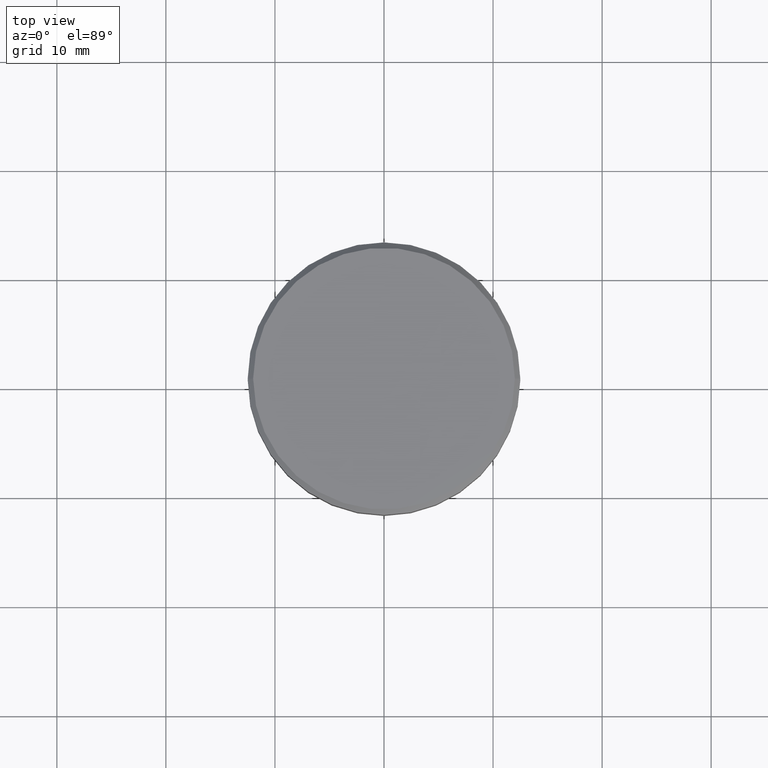
[diagram: clean part render]
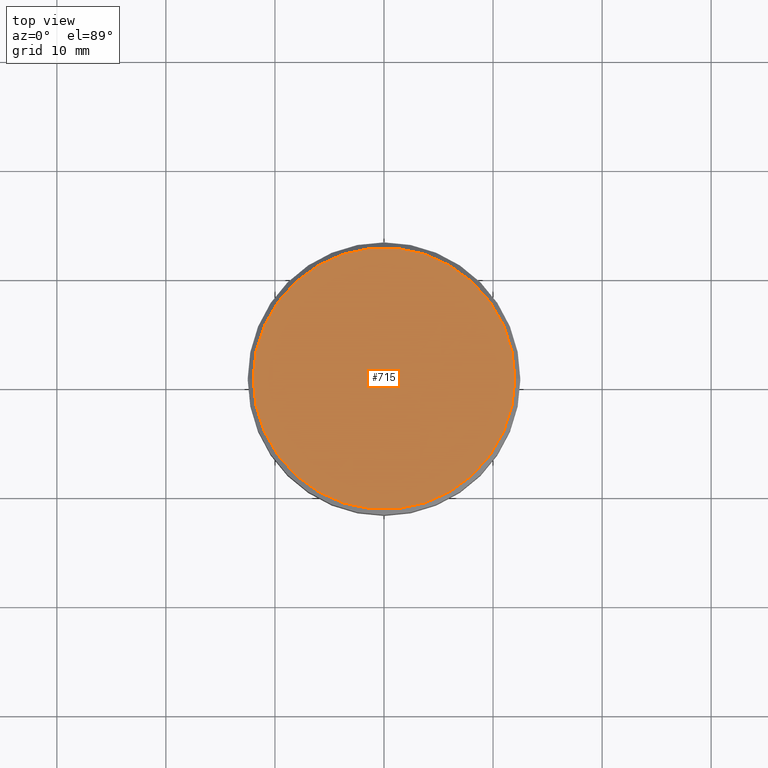
[diagram: same view with one face highlighted and labeled with its STEP entity id]
A machine part, top view. The second image highlights one B-rep face of the part: STEP entity #715.
In plain terms, the highlighted planar face has unit normal (0, -0, 1).
Its self-contained STEP definition (entity closure, byte-faithful):
#18 = EDGE_CURVE ( 'NONE', #985, #691, #549, .T. ) ;
#31 = EDGE_CURVE ( 'NONE', #691, #985, #1055, .T. ) ;
#51 = ORIENTED_EDGE ( 'NONE', *, *, #31, .T. ) ;
#54 = CARTESIAN_POINT ( 'NONE',  ( 0.000000000000000000, 0.000000000000000000, 0.000000000000000000 ) ) ;
#182 = ORIENTED_EDGE ( 'NONE', *, *, #18, .T. ) ;
#284 = AXIS2_PLACEMENT_3D ( 'NONE', #394, #874, #409 ) ;
#394 = CARTESIAN_POINT ( 'NONE',  ( 0.000000000000000000, 0.000000000000000000, 0.000000000000000000 ) ) ;
#409 = DIRECTION ( 'NONE',  ( 1.000000000000000000, 0.000000000000000000, 0.000000000000000000 ) ) ;
#488 = DIRECTION ( 'NONE',  ( 1.000000000000000000, 0.000000000000000000, 0.000000000000000000 ) ) ;
#513 = CARTESIAN_POINT ( 'NONE',  ( -12.00000000000001066, 0.000000000000000000, 0.000000000000000000 ) ) ;
#530 = CARTESIAN_POINT ( 'NONE',  ( 12.00000000000001066, 1.500192328955508326E-15, 0.000000000000000000 ) ) ;
#549 = CIRCLE ( 'NONE', #1015, 12.00000000000001066 ) ;
#575 = PLANE ( 'NONE',  #284 ) ;
#576 = AXIS2_PLACEMENT_3D ( 'NONE', #54, #770, #675 ) ;
#592 = CARTESIAN_POINT ( 'NONE',  ( 0.000000000000000000, 0.000000000000000000, 0.000000000000000000 ) ) ;
#675 = DIRECTION ( 'NONE',  ( 1.000000000000000000, 0.000000000000000000, 0.000000000000000000 ) ) ;
#691 = VERTEX_POINT ( 'NONE', #513 ) ;
#715 = ADVANCED_FACE ( 'NONE', ( #772 ), #575, .T. ) ;
#770 = DIRECTION ( 'NONE',  ( -0.000000000000000000, -0.000000000000000000, 1.000000000000000000 ) ) ;
#772 = FACE_OUTER_BOUND ( 'NONE', #1019, .T. ) ;
#874 = DIRECTION ( 'NONE',  ( 0.000000000000000000, -0.000000000000000000, 1.000000000000000000 ) ) ;
#985 = VERTEX_POINT ( 'NONE', #530 ) ;
#1015 = AXIS2_PLACEMENT_3D ( 'NONE', #592, #1130, #488 ) ;
#1019 = EDGE_LOOP ( 'NONE', ( #51, #182 ) ) ;
#1055 = CIRCLE ( 'NONE', #576, 12.00000000000001066 ) ;
#1130 = DIRECTION ( 'NONE',  ( -0.000000000000000000, -0.000000000000000000, 1.000000000000000000 ) ) ;